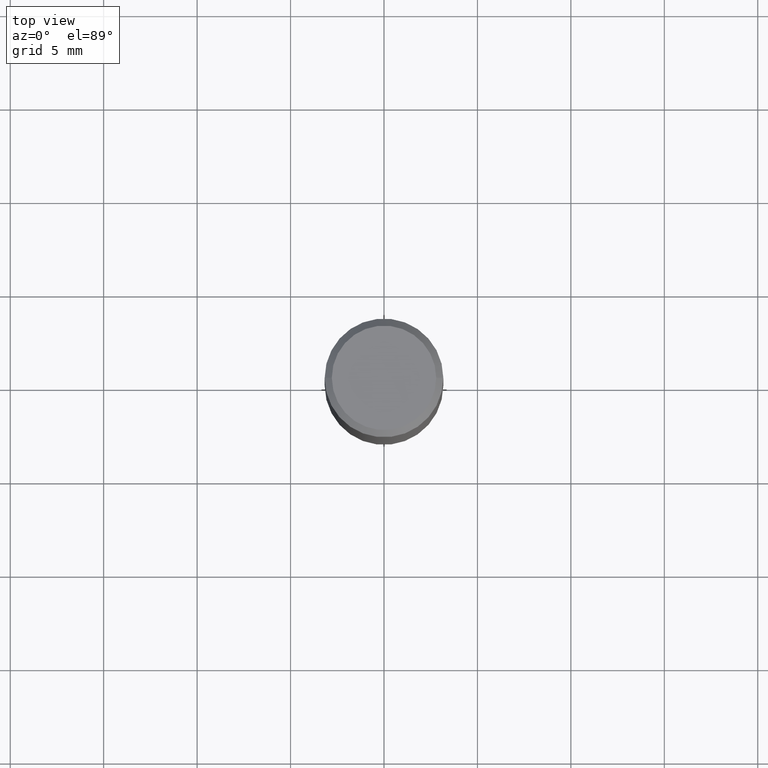
[diagram: clean part render]
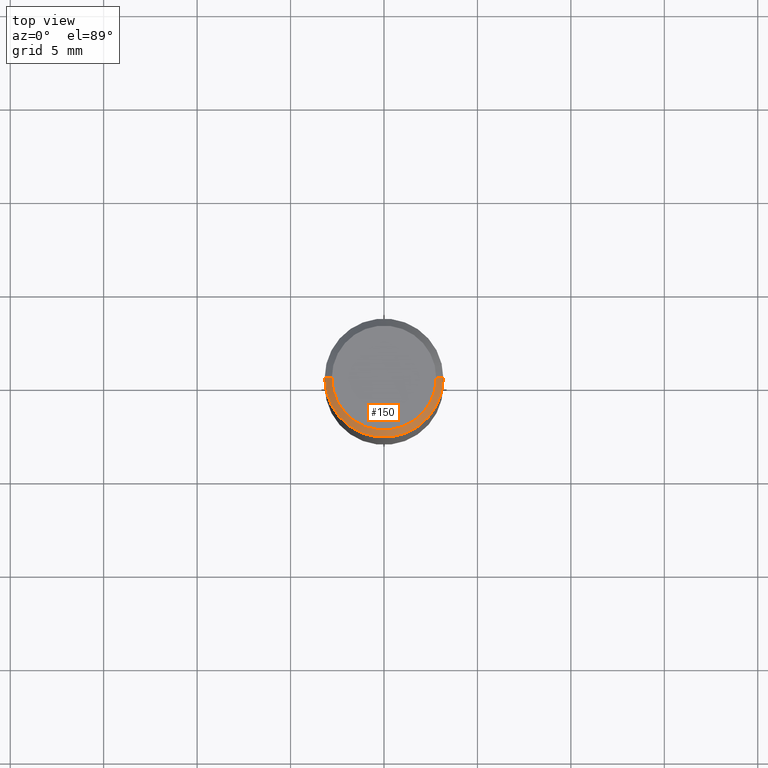
[diagram: same view with one face highlighted and labeled with its STEP entity id]
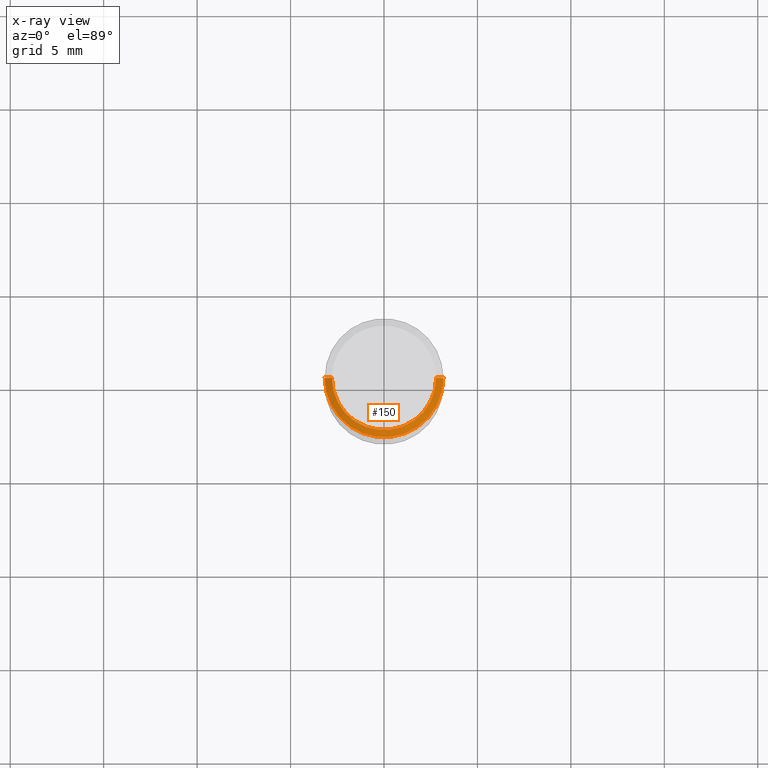
[diagram: x-ray of the same camera — body ghosted, the highlighted face saturated]
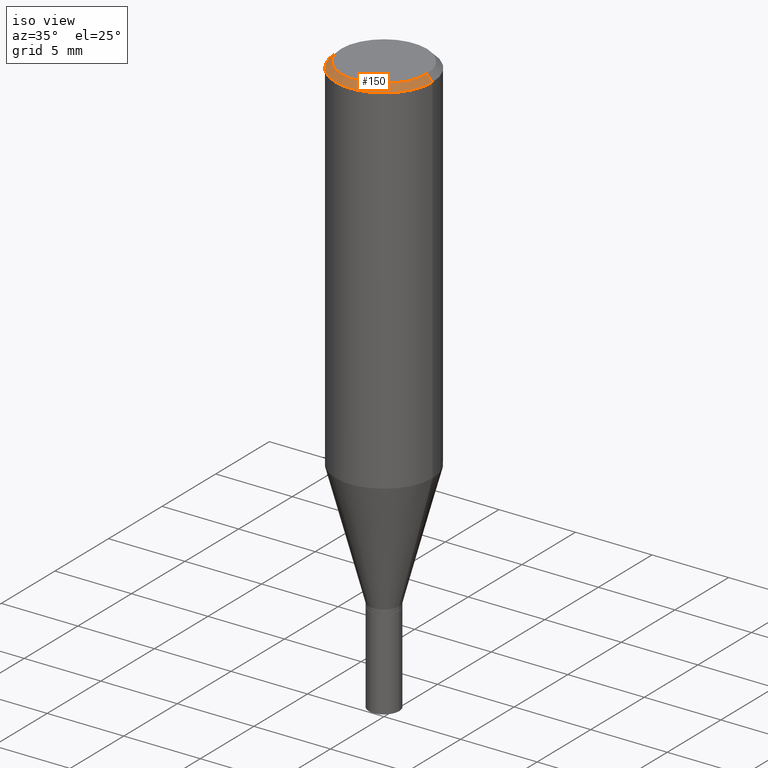
[diagram: same view with one face highlighted and labeled with its STEP entity id]
A machine part, top view. The second image highlights one B-rep face of the part: STEP entity #150.
The next image is the same camera in x-ray: the body ghosted, the highlighted face saturated — about 0% of this face is hidden behind the body in this view.
A second angle (iso view) of the same face is appended — the face is thin or edge-on in the first view.
In plain terms, the highlighted conical surface has half-angle 45 deg.
Its self-contained STEP definition (entity closure, byte-faithful):
#6 = DIRECTION ( 'NONE',  ( -2.445468806185136597E-29, 3.491481338843145583E-15, 1.000000000000000000 ) ) ;
#46 = DIRECTION ( 'NONE',  ( 0.7071067811865365815, -7.319954787623219758E-15, -0.7071067811865584529 ) ) ;
#48 = LINE ( 'NONE', #298, #401 ) ;
#56 = VERTEX_POINT ( 'NONE', #379 ) ;
#70 = DIRECTION ( 'NONE',  ( -0.7071067811865365815, 2.468850131082142676E-15, -0.7071067811865584529 ) ) ;
#73 = DIRECTION ( 'NONE',  ( 2.445468806185136597E-29, -3.491481338843145583E-15, -1.000000000000000000 ) ) ;
#82 = ORIENTED_EDGE ( 'NONE', *, *, #383, .F. ) ;
#100 = LINE ( 'NONE', #387, #403 ) ;
#128 = VERTEX_POINT ( 'NONE', #163 ) ;
#136 = CARTESIAN_POINT ( 'NONE',  ( 0.1100000000000000006, -8.322946247794777961E-16, 4.589658644116375565E-16 ) ) ;
#138 = AXIS2_PLACEMENT_3D ( 'NONE', #156, #6, #261 ) ;
#140 = DIRECTION ( 'NONE',  ( -1.000000000000000000, 6.982962677686266711E-15, 0.000000000000000000 ) ) ;
#142 = VERTEX_POINT ( 'NONE', #136 ) ;
#145 = AXIS2_PLACEMENT_3D ( 'NONE', #246, #73, #140 ) ;
#146 = AXIS2_PLACEMENT_3D ( 'NONE', #412, #148, #302 ) ;
#147 = FACE_OUTER_BOUND ( 'NONE', #226, .T. ) ;
#148 = DIRECTION ( 'NONE',  ( -2.445468806185136597E-29, 3.491481338843145583E-15, 1.000000000000000000 ) ) ;
#150 = ADVANCED_FACE ( 'NONE', ( #147 ), #288, .T. ) ;
#155 = VERTEX_POINT ( 'NONE', #283 ) ;
#156 = CARTESIAN_POINT ( 'NONE',  ( 3.668203209277705088E-31, -5.237222008264718399E-17, -0.01499999999999999944 ) ) ;
#160 = CIRCLE ( 'NONE', #146, 0.1100000000000000006 ) ;
#163 = CARTESIAN_POINT ( 'NONE',  ( -0.1100000000000000006, 7.943120045868136075E-16, 4.589658644116265124E-16 ) ) ;
#177 = ORIENTED_EDGE ( 'NONE', *, *, #350, .T. ) ;
#226 = EDGE_LOOP ( 'NONE', ( #82, #369, #366, #177 ) ) ;
#235 = CIRCLE ( 'NONE', #138, 0.1250000000000000000 ) ;
#246 = CARTESIAN_POINT ( 'NONE',  ( 3.668203209277705088E-31, -5.237222008264718399E-17, -0.01499999999999999944 ) ) ;
#261 = DIRECTION ( 'NONE',  ( 1.000000000000000000, -6.982962677686266711E-15, 0.000000000000000000 ) ) ;
#283 = CARTESIAN_POINT ( 'NONE',  ( -0.1250000000000000000, -7.706771435180783978E-16, -0.01499999999999999944 ) ) ;
#288 = CONICAL_SURFACE ( 'NONE', #145, 0.1250000000000000000, 0.7853981633974328469 ) ;
#298 = CARTESIAN_POINT ( 'NONE',  ( 0.1250000000000000000, -9.099344698040885245E-16, -0.01499999999999999944 ) ) ;
#302 = DIRECTION ( 'NONE',  ( 1.000000000000000000, -6.982962677686266711E-15, 4.852736867747365646E-29 ) ) ;
#304 = EDGE_CURVE ( 'NONE', #128, #155, #100, .T. ) ;
#350 = EDGE_CURVE ( 'NONE', #155, #56, #235, .T. ) ;
#364 = EDGE_CURVE ( 'NONE', #128, #142, #160, .T. ) ;
#366 = ORIENTED_EDGE ( 'NONE', *, *, #304, .T. ) ;
#369 = ORIENTED_EDGE ( 'NONE', *, *, #364, .F. ) ;
#379 = CARTESIAN_POINT ( 'NONE',  ( 0.1250000000000000000, -9.252425547934304180E-16, -0.01499999999999999944 ) ) ;
#383 = EDGE_CURVE ( 'NONE', #142, #56, #48, .T. ) ;
#387 = CARTESIAN_POINT ( 'NONE',  ( -0.1250000000000000000, 8.204981146281362596E-16, -0.01499999999999999944 ) ) ;
#401 = VECTOR ( 'NONE', #46, 39.37007874015748143 ) ;
#403 = VECTOR ( 'NONE', #70, 39.37007874015748143 ) ;
#412 = CARTESIAN_POINT ( 'NONE',  ( -1.122386704522442906E-44, 1.602470750759226619E-30, 4.589658644116320345E-16 ) ) ;